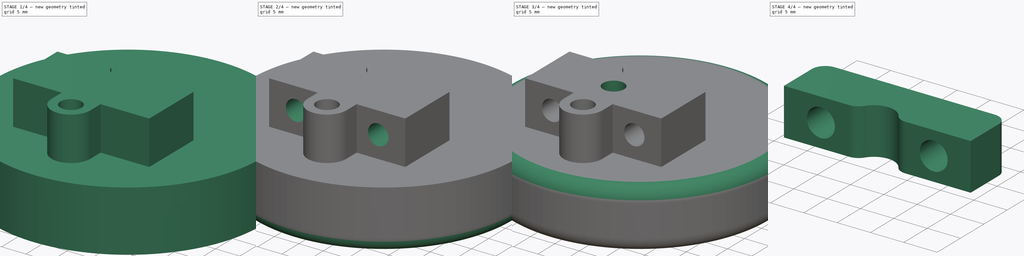
[diagram: build sequence overview — one tinted view per stage of 4, left to right]
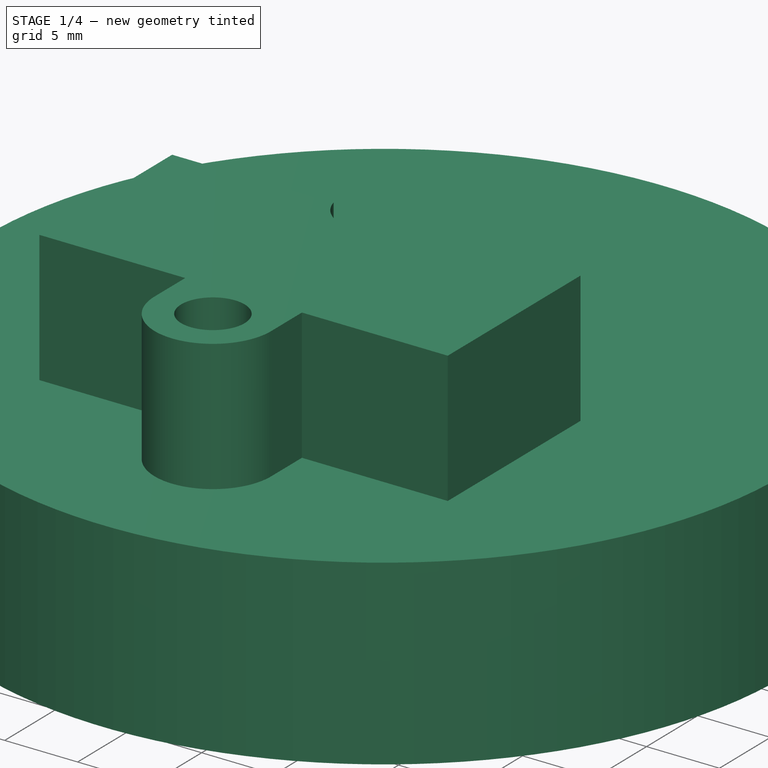
[diagram: stage 1 of 4 — iso view after this stage's code; geometry added in this stage tinted green]
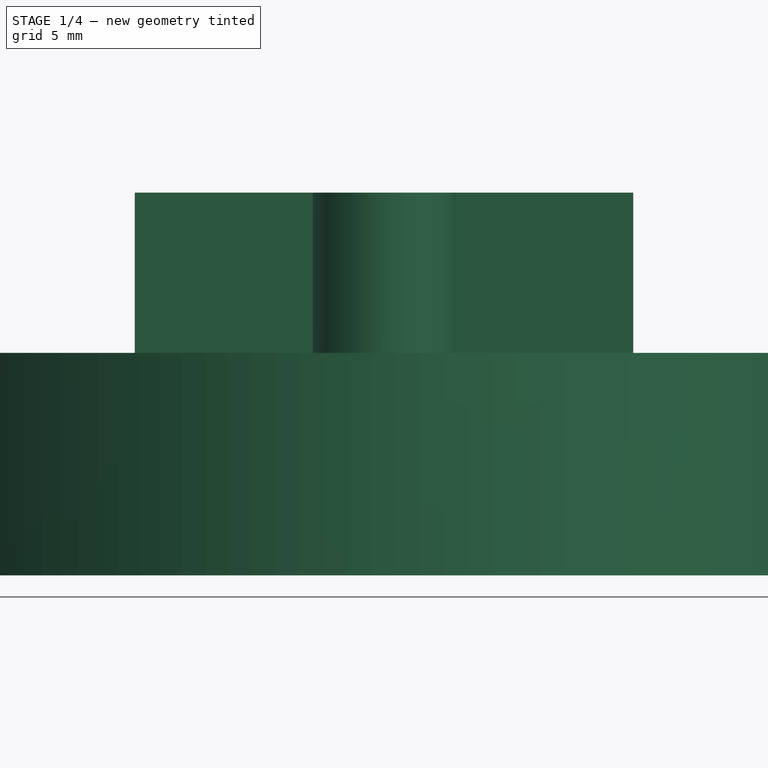
[diagram: stage 1 of 4 — front view after this stage's code; geometry added in this stage tinted green]
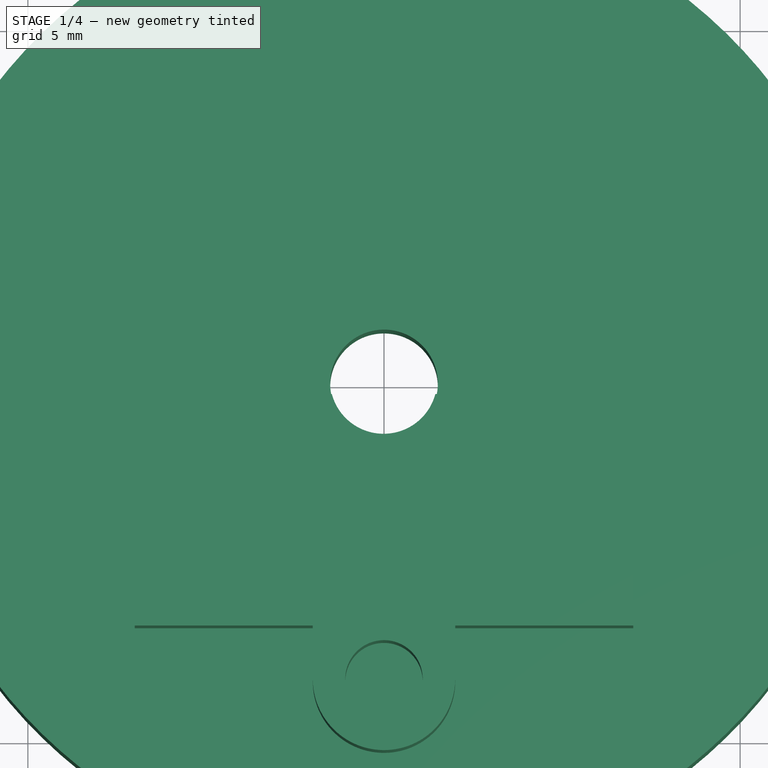
[diagram: stage 1 of 4 — top view after this stage's code; geometry added in this stage tinted green]
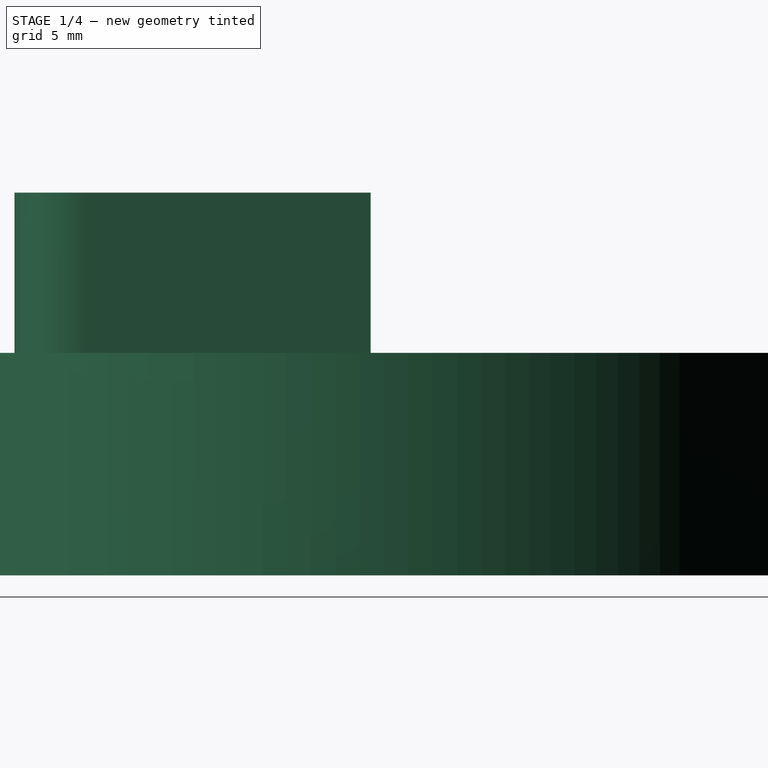
[diagram: stage 1 of 4 — right view after this stage's code; geometry added in this stage tinted green]
FCSTD DOCUMENT  (FreeCAD 1.1R42863 (Git))
Label: Wheel
License: All rights reserved
LicenseURL: https://en.wikipedia.org/wiki/All_rights_reserved
objects: Sketcher::SketchObject×8, PartDesign::Pocket×4, App::Point×3, PartDesign::Pad×3, Part::DatumPlane×2, PartDesign::Body×2, PartDesign::SubShapeBinder×1, Part::LocalCoordinateSystem×1, PartDesign::Groove×1, PartDesign::Mirrored×1
note: 45 computed .brp shape members not serialized (recipe doc carries the construction recipe); baked Part::Feature solids carry a one-line shape summary decoded from their .brp
EXTERNAL_REF file=../Variables.FCStd obj=Spreadsheet

FEATURE [App::Point] Origin001
  Role = Origin
FEATURE [Sketcher::SketchObject] Sketch
  ArcFitTolerance = 1e-06
  AttachmentSupport = -> [XY_Plane]
  ExternalTypes = [0]
  FullyConstrained = true
  MakeInternals = false
  MapMode = 5
  expr: Constraints[0] = Variables#Spreadsheet.WheelDiam
  sketch-geometry (2):
    g0: Circle CenterX=0 CenterY=0 CenterZ=0 NormalX=0 NormalY=0 NormalZ=1 AngleXU=0 Radius=27.5
    g1: Circle CenterX=0 CenterY=0 CenterZ=0 NormalX=0 NormalY=0 NormalZ=1 AngleXU=0 Radius=3.025
  constraints (4):
    c: Diameter(g0) = 55
    c: Coincident(g0,g-1)
    c: Coincident(g1,g0)
    c: Diameter(g1) = 6.05
FEATURE [PartDesign::Pad] Pad
  Direction = (0,0,1)
  Length = 12.5
  Length2 = 10
  Profile = -> Sketch
  ReferenceAxis = -> Sketch [N_Axis]
  Refine = true
  Suppressed = false
  Type = 0
FEATURE [Sketcher::SketchObject] Sketch001
  ArcFitTolerance = 1e-06
  AttachmentSupport = -> [Pad]
  ExternalGeometry = -> [Pad]
  ExternalTypes = [0]
  FullyConstrained = false
  MakeInternals = false
  MapMode = 5
  Placement = pos=(0,0,12.5) rot=(0,0,1;0rad)
  expr: Constraints[17] = Variables#Spreadsheet.M4ThroughBoreDiam
  expr: Constraints[3] = Variables#Spreadsheet.WheelClampToShaftDist / 2
  sketch-geometry (13):
    g0: LineSegment StartX=-2.93055 StartY=-0.75 StartZ=0 EndX=-14 EndY=-0.75 EndZ=0
    g1: LineSegment StartX=14 StartY=-0.75 StartZ=0 EndX=2.88425 EndY=-0.75 EndZ=0
    g2: ArcOfCircle CenterX=-0.0231521 CenterY=0.025307 CenterZ=0 NormalX=0 NormalY=0 NormalZ=1 AngleXU=0 Radius=3.009 StartAngle=3.4022 EndAngle=6.02258
    g3: LineSegment [constr] StartX=0 StartY=-13.75 StartZ=0 EndX=0 EndY=-16.75 EndZ=0
    g4: LineSegment StartX=4 StartY=-16.75 StartZ=0 EndX=4 EndY=-13.75 EndZ=0
    g5: LineSegment StartX=-4 StartY=-16.75 StartZ=0 EndX=-4 EndY=-13.75 EndZ=0
    g6: ArcOfCircle CenterX=0 CenterY=-16.75 CenterZ=0 NormalX=0 NormalY=0 NormalZ=1 AngleXU=0 Radius=4 StartAngle=3.14159 EndAngle=6.28319
    g7: Circle CenterX=0 CenterY=-16.75 CenterZ=0 NormalX=0 NormalY=0 NormalZ=1 AngleXU=0 Radius=2.175
    g8: LineSegment StartX=-4 StartY=-13.75 StartZ=0 EndX=-14 EndY=-13.75 EndZ=0
    g9: LineSegment StartX=-14 StartY=-13.75 StartZ=0 EndX=-14 EndY=-0.75 EndZ=0
    g10: LineSegment StartX=4 StartY=-13.75 StartZ=0 EndX=14 EndY=-13.75 EndZ=0
    g11: LineSegment StartX=14 StartY=-13.75 StartZ=0 EndX=14 EndY=-0.75 EndZ=0
    g12: GeomPoint X=0 Y=-0.75 Z=0
  constraints (34):
    c: PointOnObject(g0,g-3)
    c: Horizontal(g0)
    c: Horizontal(g1)
    c: Distance(g-1,g0) = 0.75
    c: Coincident(g2,g0)
    c: Coincident(g2,g1)
    c: Distance(g3) = 3
    c: PointOnObject(g3,g-2)
    c: Vertical(g3)
    c: Vertical(g4)
    c: Vertical(g5)
    c: Coincident(g6,g3)
    c: Tangent(g6,g4) = -1.5708
    c: Tangent(g6,g5) = 1.5708
    c: Radius(g6) = 4
    c: Horizontal(g1,g0)
    c: Coincident(g7,g3)
    c: Diameter(g7) = 4.35
    c: Coincident(g8,g5)
    c: Horizontal(g8)
    c: Coincident(g9,g8)
    c: Coincident(g9,g0)
    c: Vertical(g9)
    c: Coincident(g10,g4)
    c: Horizontal(g10)
    c: Coincident(g11,g10)
    c: Coincident(g11,g1)
    c: Vertical(g11)
    c: PointOnObject(g3,g10)
    c: Horizontal(g4,g5)
    c: Distance(g1,g10) = 13
    c: Symmetric(g0,g1,g12)
    c: PointOnObject(g12,g-2)
    c: Distance(g11,g9) = 28
FEATURE [PartDesign::Pad] Pad001
  BaseFeature = -> Pad
  Direction = (0,0,1)
  Length = 9
  Length2 = 10
  Profile = -> Sketch001
  ReferenceAxis = -> Sketch001 [N_Axis]
  Refine = true
  Suppressed = false
  Type = 0
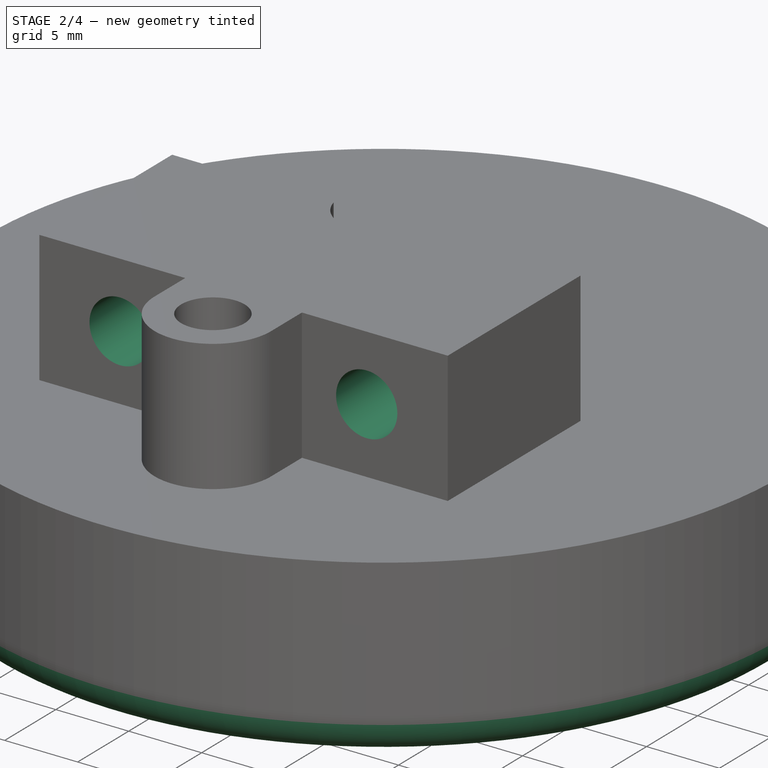
[diagram: stage 2 of 4 — iso view after this stage's code; geometry added in this stage tinted green]
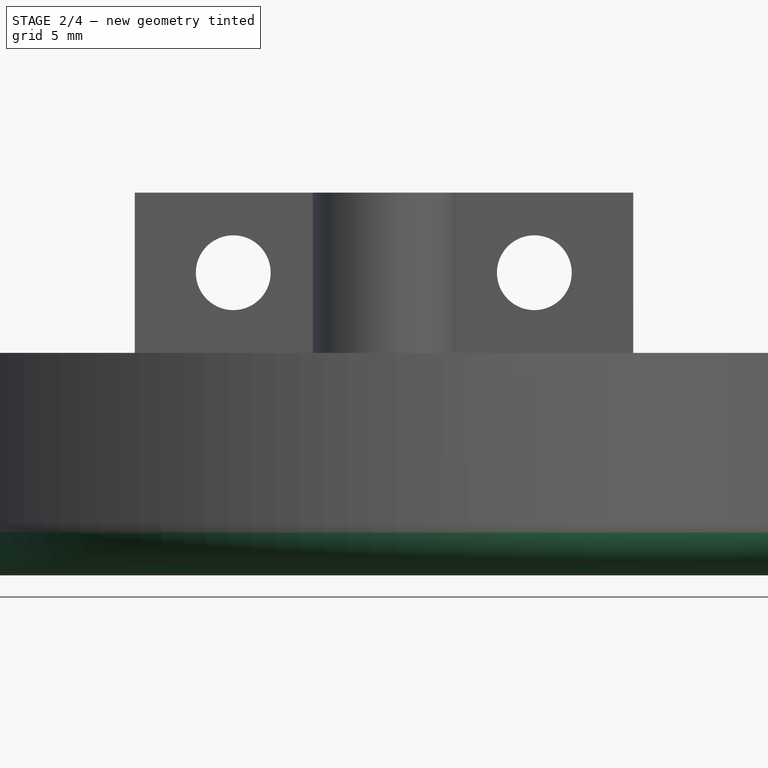
[diagram: stage 2 of 4 — front view after this stage's code; geometry added in this stage tinted green]
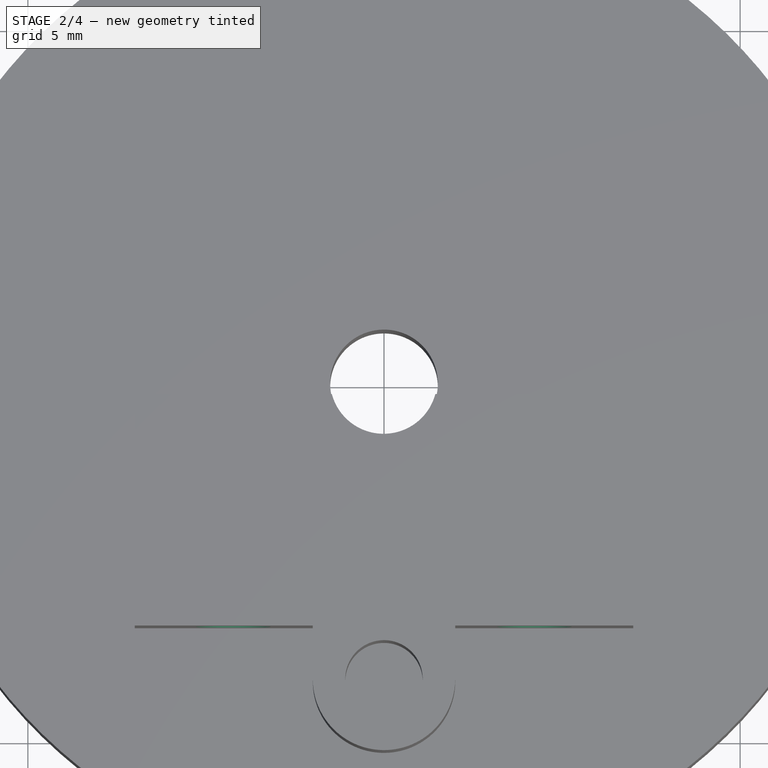
[diagram: stage 2 of 4 — top view after this stage's code; geometry added in this stage tinted green]
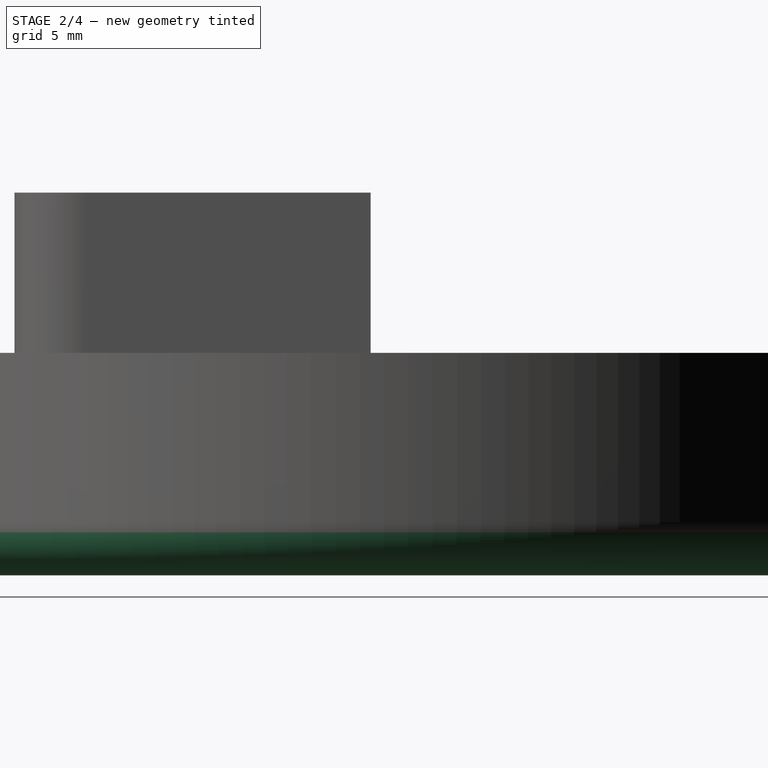
[diagram: stage 2 of 4 — right view after this stage's code; geometry added in this stage tinted green]
FEATURE [Sketcher::SketchObject] Sketch002
  ArcFitTolerance = 1e-06
  AttachmentSupport = -> [Pad001]
  ExternalGeometry = -> [Pad001]
  ExternalTypes = [0,0,0,0]
  FullyConstrained = true
  MakeInternals = false
  MapMode = 5
  Placement = pos=(0,-0.75,0) rot=(0,0.707107,0.707107;3.14159rad)
  expr: Constraints[2] = 4.2
  sketch-geometry (6):
    g0: GeomPoint [constr] X=-8.44212 Y=21.5 Z=0
    g1: GeomPoint [constr] X=-2.88425 Y=17 Z=0
    g2: Circle CenterX=-8.44212 CenterY=17 CenterZ=0 NormalX=0 NormalY=0 NormalZ=1 AngleXU=0 Radius=2.1
    g3: GeomPoint X=8.46528 Y=21.5 Z=0
    g4: Circle CenterX=8.46528 CenterY=17 CenterZ=0 NormalX=0 NormalY=0 NormalZ=1 AngleXU=0 Radius=2.1
    g5: GeomPoint X=2.93055 Y=17 Z=0
  constraints (10):
    c: Vertical(g2,g0)
    c: Horizontal(g2,g1)
    c: Diameter(g2) = 4.2
    c: Equal(g4,g2)
    c: Horizontal(g2,g4)
    c: Vertical(g4,g3)
    c: Symmetric(g-3,g-3,g5)
    c: Symmetric(g-4,g-4,g1)
    c: Symmetric(g-5,g-5,g0)
    c: Symmetric(g-6,g-6,g3)
FEATURE [PartDesign::Pocket] Pocket
  BaseFeature = -> Pad001
  Direction = (0,-1,2e-16)
  Length = 5
  Length2 = 5
  Profile = -> Sketch002
  ReferenceAxis = -> Sketch002 [N_Axis]
  Refine = true
  Suppressed = false
  Type = 1
FEATURE [App::Point] Origin003
  Role = Origin
FEATURE [PartDesign::SubShapeBinder] Binder
  BindCopyOnChange = 0
  BindMode = 0
  ClaimChildren = false
  Context = -> Body001 [Binder.]
  Fuse = false
  MakeFace = true
  OffsetFill = false
  OffsetIntersection = false
  OffsetJoinType = 0
  OffsetOpenResult = false
  PartialLoad = false
  Refine = true
  Relative = true
  Support = -> [Body]
  _Version = 2
FEATURE [Sketcher::SketchObject] Sketch003
  ArcFitTolerance = 1e-06
  AttachmentOffset = pos=(0,0,-1) rot=(0,0,1;0rad)
  AttachmentSupport = -> [Binder]
  ExternalGeometry = -> [Binder]
  ExternalTypes = [0,0,0]
  FullyConstrained = true
  MakeInternals = false
  MapMode = 5
  Placement = pos=(0,0,20.5) rot=(0,0,1;0rad)
  expr: .AttachmentOffset.Base.z = -Variables#Spreadsheet.ClampZOffset
  expr: Constraints[26] = Variables#Spreadsheet.WheelClampToShaftDist
  sketch-geometry (14):
    g0: LineSegment StartX=14 StartY=0.75 StartZ=0 EndX=4.20573 EndY=0.75 EndZ=0
    g1: LineSegment StartX=-4.20573 StartY=0.75 StartZ=0 EndX=-14 EndY=0.75 EndZ=0
    g2: ArcOfCircle CenterX=7.012e-13 CenterY=2.9e-15 CenterZ=0 NormalX=0 NormalY=0 NormalZ=1 AngleXU=0 Radius=3.025 StartAngle=0.579091 EndAngle=2.5625
    g3: LineSegment StartX=14 StartY=0.75 StartZ=0 EndX=14 EndY=6.75 EndZ=0
    g4: LineSegment StartX=12 StartY=8.75 StartZ=0 EndX=-12 EndY=8.75 EndZ=0
    g5: LineSegment StartX=-14 StartY=6.75 StartZ=0 EndX=-14 EndY=0.75 EndZ=0
    g6: LineSegment [constr] StartX=14 StartY=-0.75 StartZ=0 EndX=14 EndY=0.75 EndZ=0
    g7: GeomPoint [constr] X=14 Y=4.9e-15 Z=0
    g8: ArcOfCircle CenterX=12 CenterY=6.75 CenterZ=0 NormalX=0 NormalY=0 NormalZ=1 AngleXU=0 Radius=2 StartAngle=-2.7e-15 EndAngle=1.5708
    g9: GeomPoint [constr] X=14 Y=8.75 Z=0
    g10: ArcOfCircle CenterX=-12 CenterY=6.75 CenterZ=0 NormalX=0 NormalY=0 NormalZ=1 AngleXU=0 Radius=2 StartAngle=1.5708 EndAngle=3.14159
    g11: GeomPoint [constr] X=-14 Y=8.75 Z=0
    g12: ArcOfCircle CenterX=-4.20573 CenterY=2.75 CenterZ=0 NormalX=0 NormalY=0 NormalZ=1 AngleXU=0 Radius=2 StartAngle=4.71239 EndAngle=5.70409
    g13: ArcOfCircle CenterX=4.20573 CenterY=2.75 CenterZ=0 NormalX=0 NormalY=0 NormalZ=1 AngleXU=0 Radius=2 StartAngle=3.72068 EndAngle=4.71239
  constraints (34):
    c: Horizontal(g0)
    c: Horizontal(g1)
    c: Coincident(g3,g0)
    c: Vertical(g3)
    c: Horizontal(g4)
    c: Coincident(g5,g1)
    c: Vertical(g5)
    c: Equal(g0,g1)
    c: Coincident(g2,g-1)
    c: Coincident(g6,g0)
    c: Symmetric(g6,g6,g7)
    c: PointOnObject(g7,g-1)
    c: PointOnObject(g9,g3)
    c: PointOnObject(g9,g4)
    c: Tangent(g3,g8) = -1.5708
    c: Tangent(g4,g8) = -1.5708
    c: PointOnObject(g11,g4)
    c: PointOnObject(g11,g5)
    c: Tangent(g4,g10) = -1.5708
    c: Tangent(g5,g10) = -1.5708
    c: Radius(g10) = 2
    c: Equal(g10,g8)
    c: Vertical(g6)
    c: Equal(g2,g-3)
    c: Distance(g0,g4) = 8
    c: Vertical(g1,g-5)
    c: Distance(g-5,g1) = 1.5
    c: Tangent(g2,g12) = 1.5708
    c: Tangent(g1,g12) = 1.5708
    c: Tangent(g2,g13) = 1.5708
    c: Tangent(g0,g13) = 1.5708
    c: Radius(g13) = 2
    c: Equal(g12,g13)
    c: PointOnObject(g0,g1)
FEATURE [App::Point] Origin004
  Role = Origin
FEATURE [Part::LocalCoordinateSystem] LCS
  AttacherType = Attacher::AttachEngine3D
  AttachmentSupport = -> [Pocket]
  MapMode = 11
  OriginFeatures = -> [X_Axis002,Y_Axis002,Z_Axis002,XY_Plane002,XZ_Plane002,YZ_Plane002,Origin004]
  Placement = pos=(-3.6e-15,0,12.5) rot=(0,0,1;1.5708rad)
FEATURE [Sketcher::SketchObject] Sketch005
  ArcFitTolerance = 1e-06
  AttachmentSupport = -> [XZ_Plane002]
  ExternalGeometry = -> [Pocket]
  ExternalTypes = [0]
  FullyConstrained = true
  MakeInternals = false
  MapMode = 5
  Placement = pos=(0,0,0) rot=(1,0,0;1.5708rad)
  sketch-geometry (3):
    g0: LineSegment StartX=-27.5 StartY=-1.54e-13 StartZ=0 EndX=-27.5 EndY=3 EndZ=0
    g1: LineSegment StartX=-27.5 StartY=-1.54e-13 StartZ=0 EndX=-24.5 EndY=4.454e-13 EndZ=0
    g2: ArcOfCircle CenterX=-24.5 CenterY=3 CenterZ=0 NormalX=0 NormalY=0 NormalZ=1 AngleXU=0 Radius=3 StartAngle=3.14159 EndAngle=4.71239
  constraints (7):
    c: Coincident(g0,g-3)
    c: Vertical(g0)
    c: Coincident(g1,g0)
    c: PointOnObject(g1,g-3)
    c: Tangent(g2,g0) = 1.5708
    c: Tangent(g2,g1) = -1.5708
    c: Radius(g2) = 3
FEATURE [PartDesign::Groove] Groove
  Angle = 360
  Angle2 = 60
  Axis = (0,2e-16,1)
  Base = (0,0,0)
  BaseFeature = -> Pocket
  Profile = -> Sketch005
  ReferenceAxis = -> Sketch005 [V_Axis]
  Refine = true
  Reversed = true
  Suppressed = false
  Type = 0
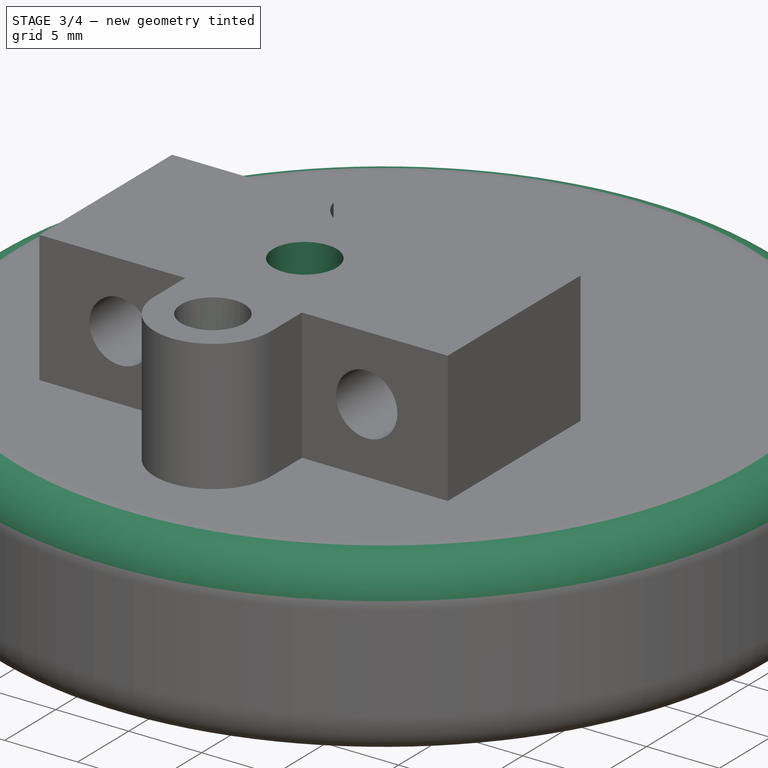
[diagram: stage 3 of 4 — iso view after this stage's code; geometry added in this stage tinted green]
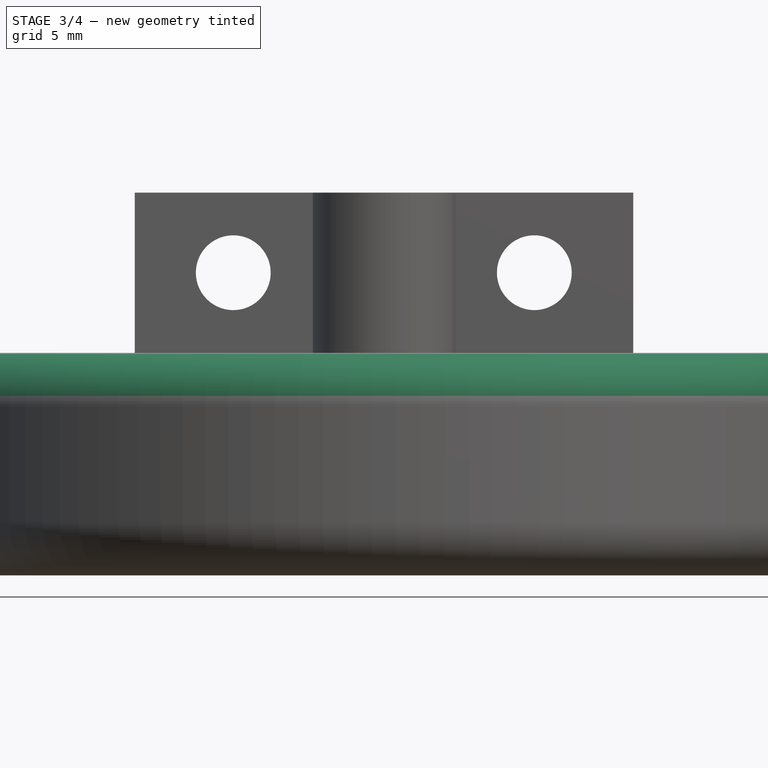
[diagram: stage 3 of 4 — front view after this stage's code; geometry added in this stage tinted green]
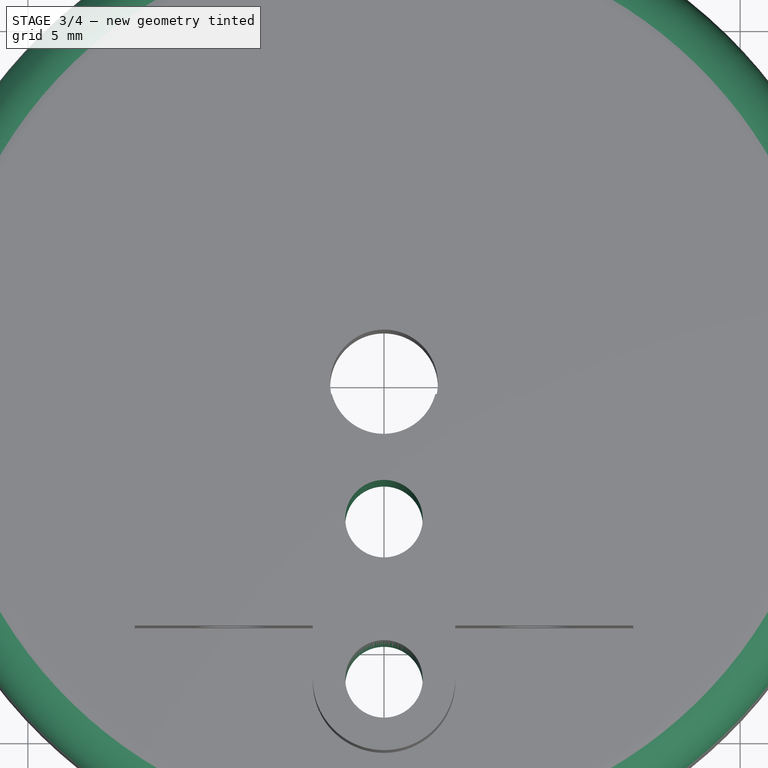
[diagram: stage 3 of 4 — top view after this stage's code; geometry added in this stage tinted green]
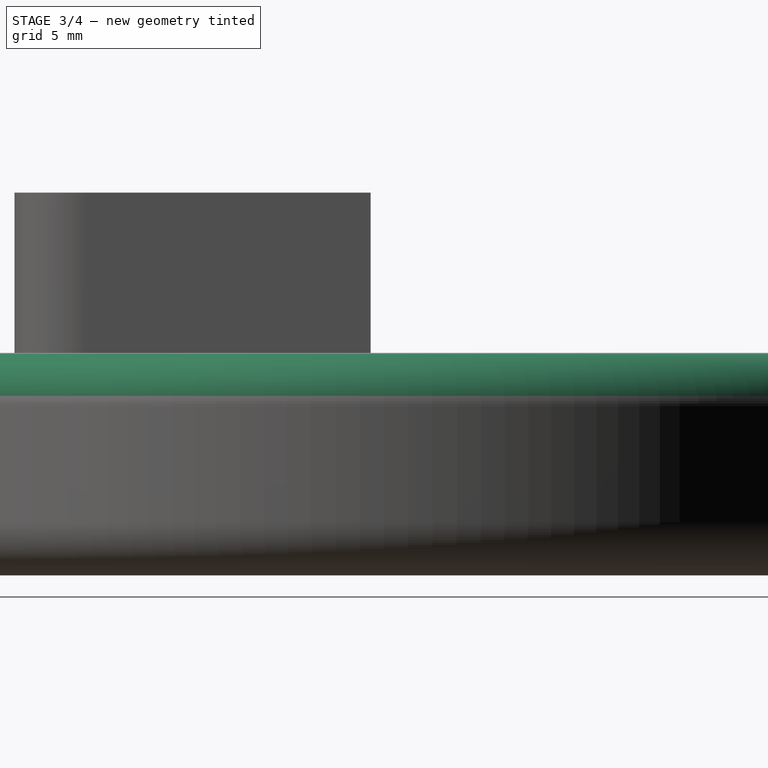
[diagram: stage 3 of 4 — right view after this stage's code; geometry added in this stage tinted green]
FEATURE [Part::DatumPlane] DatumPlane
  AttachmentSupport = -> [Pocket]
  MapMode = 45
  Placement = pos=(-1.07e-14,-5e-16,6.25) rot=(0,0,1;0rad)
FEATURE [PartDesign::Mirrored] Mirrored
  BaseFeature = -> Groove
  MirrorPlane = -> DatumPlane
  Originals = -> [Groove]
  Refine = true
  Suppressed = false
  TransformMode = 0
FEATURE [PartDesign::Body] Body001  label="Clamp"
  AllowCompound = true
  Group = -> [Binder,Sketch003,Pad002,Sketch004,Pocket001]
  Origin = -> Origin002
  Tip = -> Pocket001
FEATURE [Part::DatumPlane] DatumPlane001
  AttachmentOffset = pos=(0,0,0) rot=(0,1,0;1.5708rad)
  AttachmentSupport = -> [Mirrored]
  MapMode = 11
  Placement = pos=(-8.46528,-0.75,17) rot=(0,0,1;4.71239rad)
FEATURE [Sketcher::SketchObject] Sketch007
  ArcFitTolerance = 1e-06
  ExternalGeometry = -> [Mirrored]
  ExternalTypes = [0]
  FullyConstrained = true
  MakeInternals = false
  MapMode = 5
  Placement = pos=(0,0,21.5) rot=(0,0,1;0rad)
  expr: Constraints[1] = Variables#Spreadsheet.M4ThroughBoreDiam
  sketch-geometry (1):
    g0: Circle CenterX=0 CenterY=-7.75 CenterZ=0 NormalX=0 NormalY=0 NormalZ=1 AngleXU=0 Radius=2.175
  constraints (3):
    c: PointOnObject(g0,g-2)
    c: Diameter(g0) = 4.35
    c: DistanceY(g-3,g0) = 9
FEATURE [PartDesign::Pocket] Pocket002
  BaseFeature = -> Mirrored
  Direction = (0,0,-1)
  Length = 0
  Length2 = 5
  Profile = -> Sketch007
  ReferenceAxis = -> Sketch007 [N_Axis]
  Refine = true
  Suppressed = false
  Type = 3
  UpToFace = -> Mirrored [Face4]
FEATURE [Sketcher::SketchObject] Sketch008
  ArcFitTolerance = 1e-06
  AttachmentSupport = -> [Pocket002]
  ExternalGeometry = -> [Pocket002]
  ExternalTypes = [0]
  FullyConstrained = true
  MakeInternals = false
  MapMode = 5
  Placement = pos=(0,0,21.5) rot=(0,0,1;0rad)
FEATURE [PartDesign::Pocket] Pocket003
  BaseFeature = -> Pocket002
  Direction = (0,0,-1)
  Length = 0
  Length2 = 5
  Profile = -> Sketch008
  ReferenceAxis = -> Sketch008 [N_Axis]
  Refine = true
  Suppressed = false
  Type = 3
  UpToFace = -> Pocket002 [Face4]
FEATURE [PartDesign::Body] Body  label="Wheel"
  AllowCompound = true
  Group = -> [Sketch,Pad,Sketch001,Pad001,Sketch002,Pocket,LCS,Sketch005,DatumPlane,Groove,Mirrored,DatumPlane001,Sketch007,Pocket002,Sketch008,Pocket003]
  Origin = -> Origin
  Tip = -> Pocket003
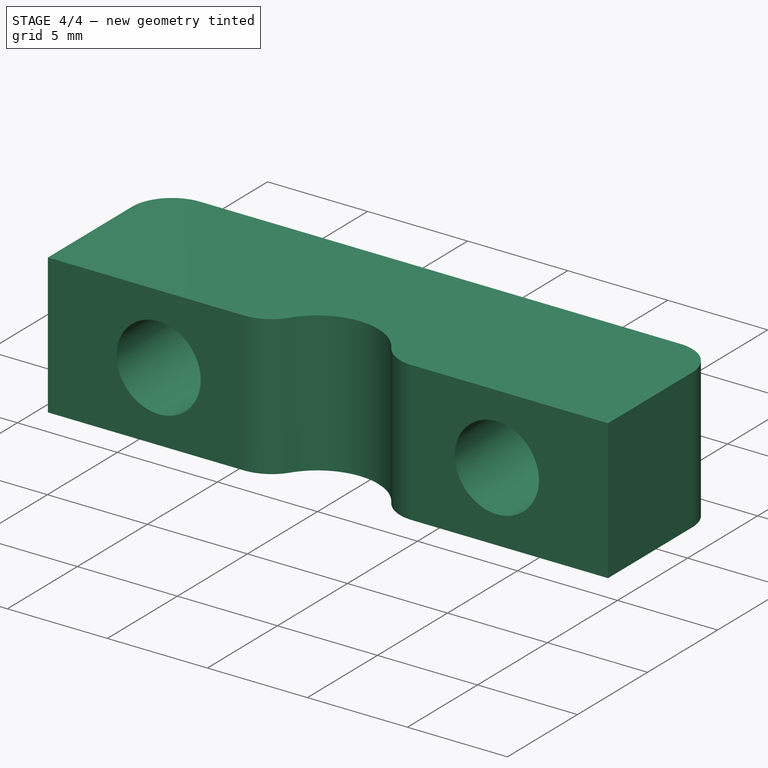
[diagram: stage 4 of 4 — iso view after this stage's code; geometry added in this stage tinted green]
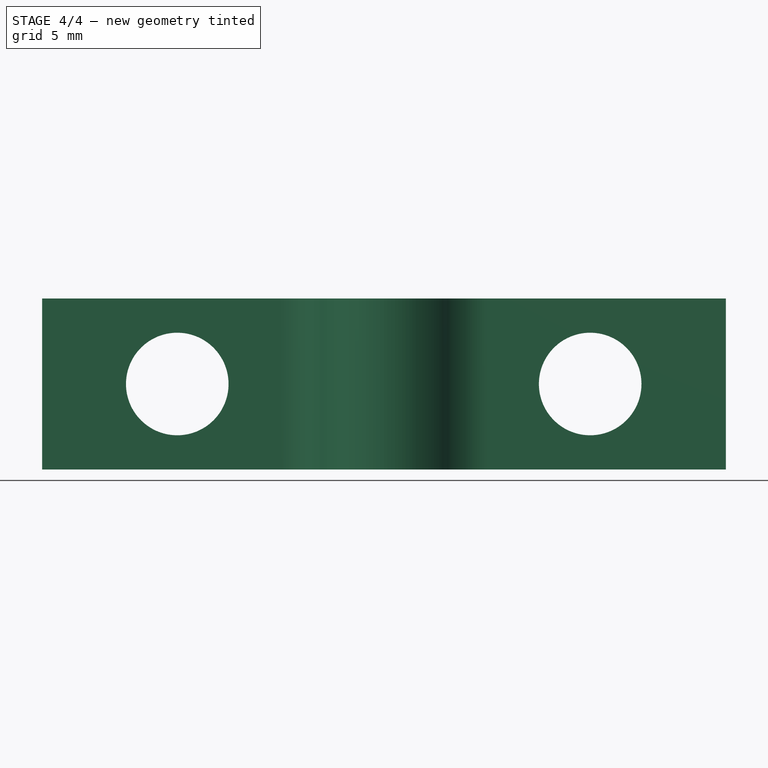
[diagram: stage 4 of 4 — front view after this stage's code; geometry added in this stage tinted green]
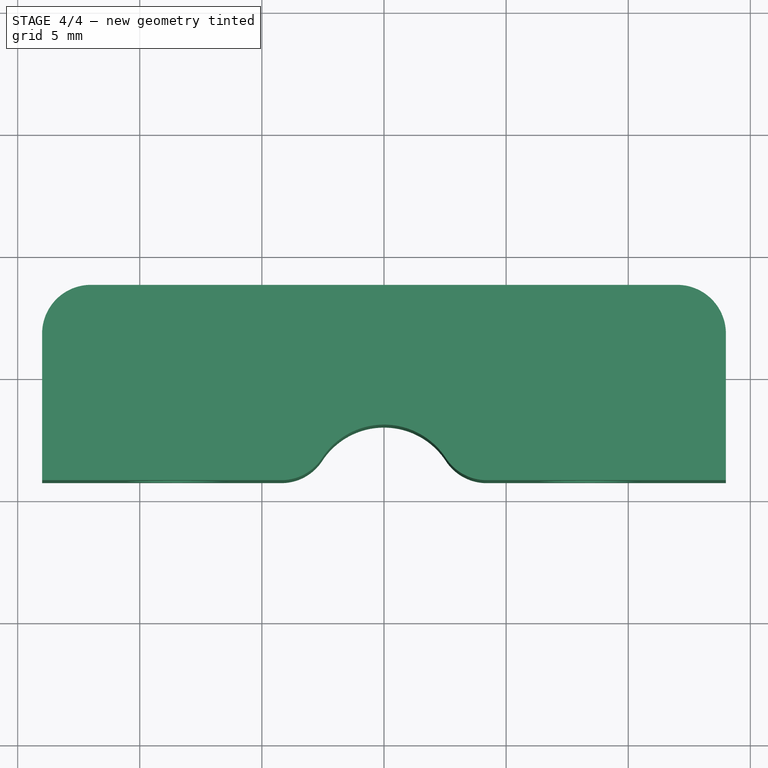
[diagram: stage 4 of 4 — top view after this stage's code; geometry added in this stage tinted green]
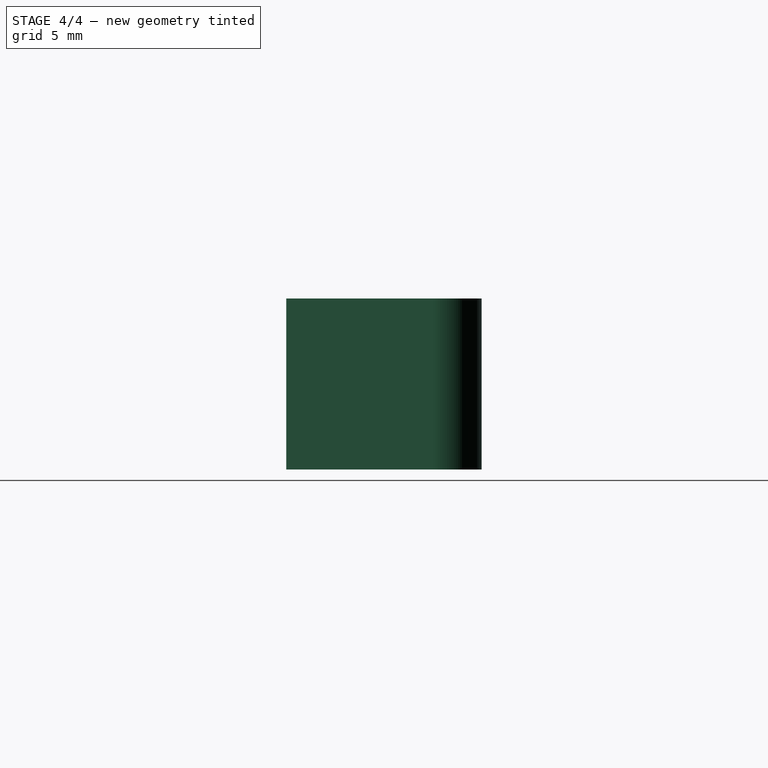
[diagram: stage 4 of 4 — right view after this stage's code; geometry added in this stage tinted green]
FEATURE [PartDesign::Pad] Pad002
  Direction = (0,0,1)
  Length = 10
  Length2 = 10
  Offset = -1
  Profile = -> Sketch003
  ReferenceAxis = -> Sketch003 [N_Axis]
  Refine = true
  Suppressed = false
  Type = 3
  UpToFace = -> Mirrored [Face5]
  expr: Offset = -Variables#Spreadsheet.ClampZOffset
FEATURE [Sketcher::SketchObject] Sketch004
  ArcFitTolerance = 1e-06
  AttachmentSupport = -> [Pad002]
  ExternalGeometry = -> [Binder]
  ExternalTypes = [0,0]
  FullyConstrained = true
  MakeInternals = false
  MapMode = 5
  Placement = pos=(0,8.75,0) rot=(0,0.707107,0.707107;3.14159rad)
FEATURE [PartDesign::Pocket] Pocket001
  BaseFeature = -> Pad002
  Direction = (0,-1,2e-16)
  Length = 0
  Length2 = 5
  Profile = -> Sketch004
  ReferenceAxis = -> Sketch004 [N_Axis]
  Refine = true
  Suppressed = false
  Type = 3
  UpToFace = -> Pad002 [Face5]
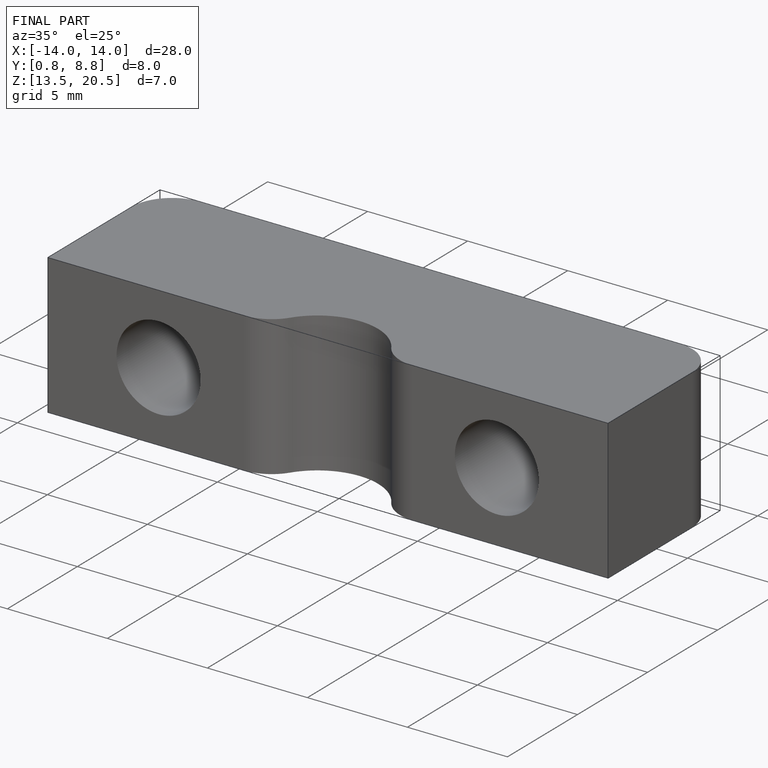
[diagram: finished part — iso view with bounding-box wireframe]
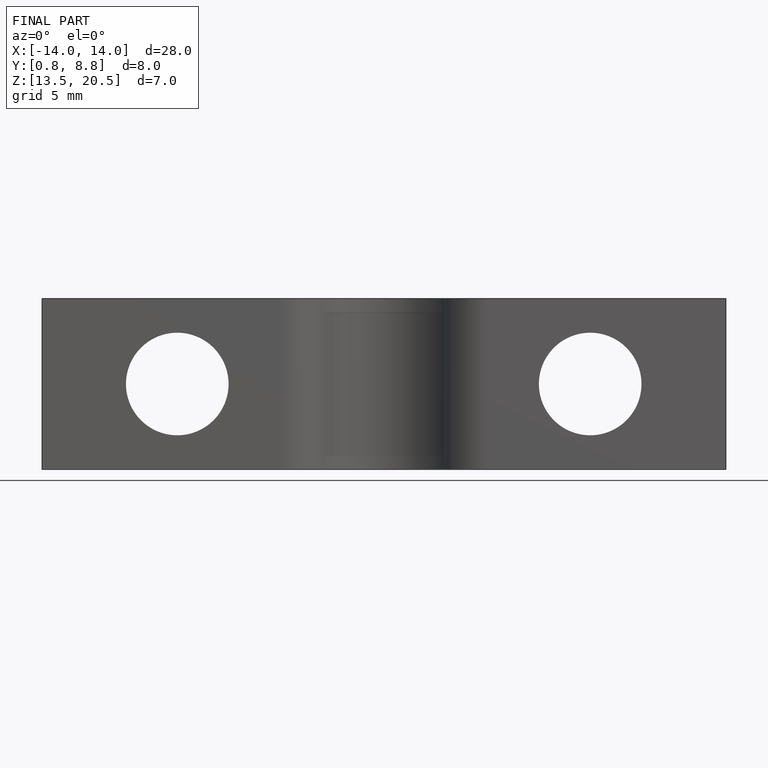
[diagram: finished part — front view with bounding-box wireframe]
